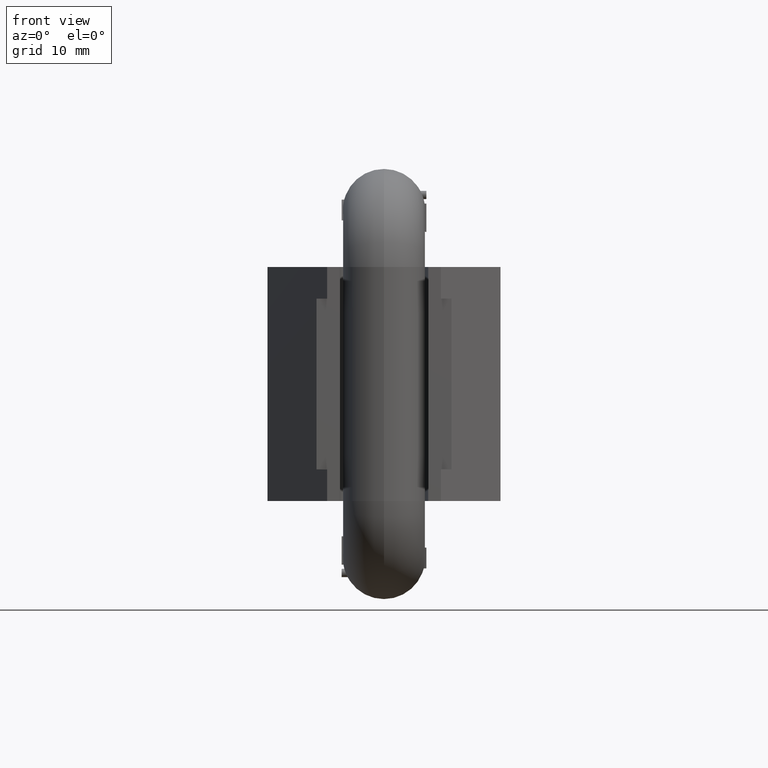
[diagram: clean part render]
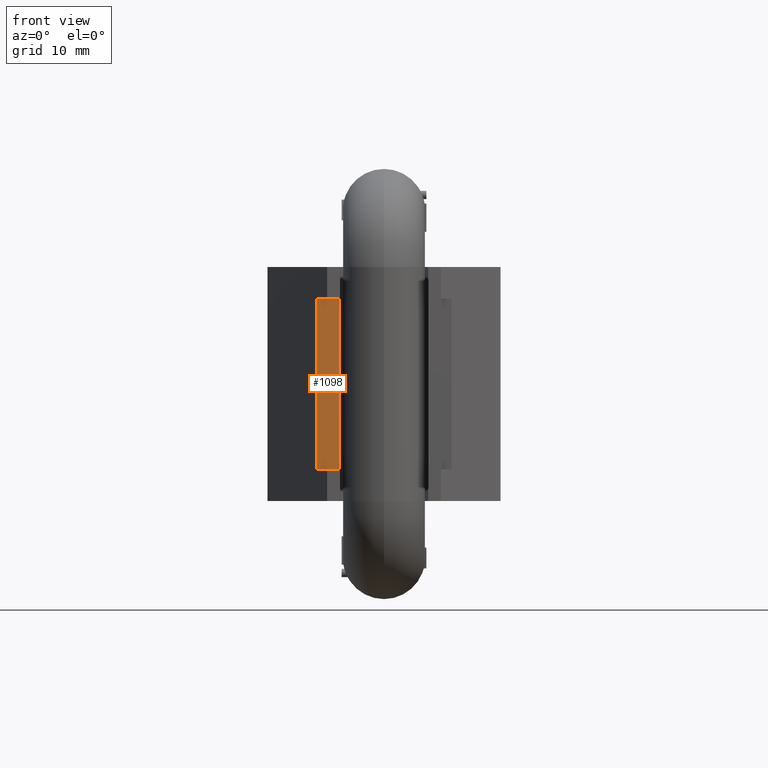
[diagram: same view with one face highlighted and labeled with its STEP entity id]
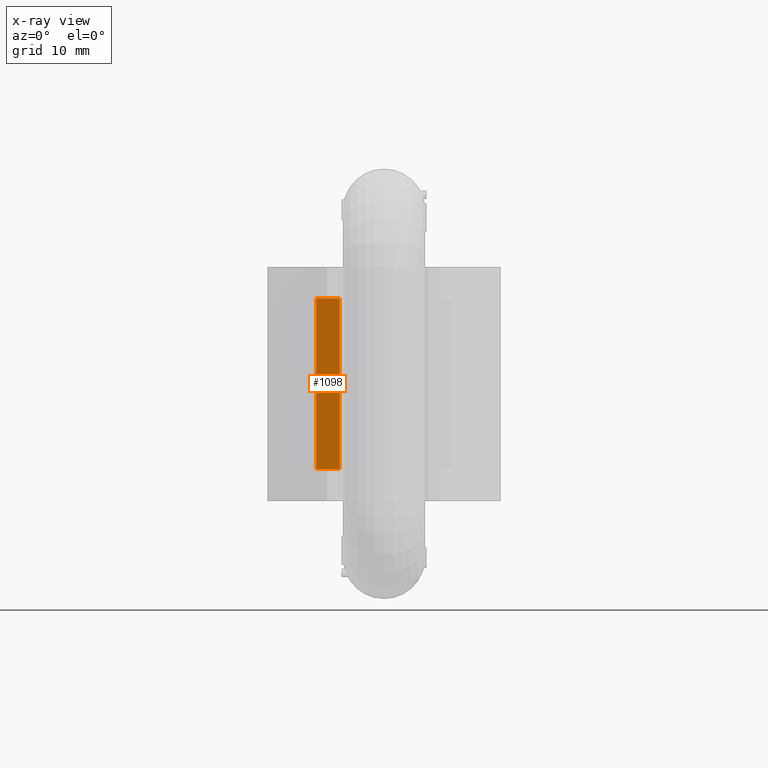
[diagram: x-ray of the same camera — body ghosted, the highlighted face saturated]
A machine part, front view. The second image highlights one B-rep face of the part: STEP entity #1098.
The next image is the same camera in x-ray: the body ghosted, the highlighted face saturated — about 0% of this face is hidden behind the body in this view.
In plain terms, the highlighted planar face has unit normal (0, -1, 0).
Its self-contained STEP definition (entity closure, byte-faithful):
#905=PLANE('',#6728);
#1098=ADVANCED_FACE('',(#1479),#905,.T.);
#1479=FACE_OUTER_BOUND('',#1821,.T.);
#1821=EDGE_LOOP('',(#2306,#2307,#2308,#2309));
#2306=ORIENTED_EDGE('',*,*,#4838,.F.);
#2307=ORIENTED_EDGE('',*,*,#4839,.T.);
#2308=ORIENTED_EDGE('',*,*,#4840,.T.);
#2309=ORIENTED_EDGE('',*,*,#4841,.T.);
#4198=VERTEX_POINT('',#8248);
#4199=VERTEX_POINT('',#8249);
#4200=VERTEX_POINT('',#8251);
#4201=VERTEX_POINT('',#8253);
#4838=EDGE_CURVE('',#4198,#4199,#5782,.T.);
#4839=EDGE_CURVE('',#4198,#4200,#5783,.T.);
#4840=EDGE_CURVE('',#4200,#4201,#5784,.T.);
#4841=EDGE_CURVE('',#4201,#4199,#5785,.T.);
#5782=LINE('',#8247,#6184);
#5783=LINE('',#8250,#6185);
#5784=LINE('',#8252,#6186);
#5785=LINE('',#8254,#6187);
#6184=VECTOR('',#7063,1.);
#6185=VECTOR('',#7064,1.);
#6186=VECTOR('',#7065,1.);
#6187=VECTOR('',#7066,1.);
#6728=AXIS2_PLACEMENT_3D('',#8255,#7067,#7068);
#7063=DIRECTION('',(1.,3.75075346157147E-16,0.));
#7064=DIRECTION('',(0.,0.,-1.));
#7065=DIRECTION('',(1.,3.75075346157147E-16,0.));
#7066=DIRECTION('',(0.,0.,1.));
#7067=DIRECTION('',(3.75075346157147E-16,-1.,0.));
#7068=DIRECTION('',(1.,3.75133951679985E-16,0.));
#8247=CARTESIAN_POINT('',(18.5,2.,13.5));
#8248=CARTESIAN_POINT('',(-10.6781992623546,1.99999999999999,13.5));
#8249=CARTESIAN_POINT('',(-7.,1.99999999999999,13.5));
#8250=CARTESIAN_POINT('',(-10.6781992623546,1.99999999999999,13.5));
#8251=CARTESIAN_POINT('',(-10.6781992623546,1.99999999999999,-13.5));
#8252=CARTESIAN_POINT('',(18.5,2.,-13.5));
#8253=CARTESIAN_POINT('',(-7.,1.99999999999999,-13.5));
#8254=CARTESIAN_POINT('',(-7.,1.99999999999999,18.5));
#8255=CARTESIAN_POINT('',(18.5,2.,13.5));